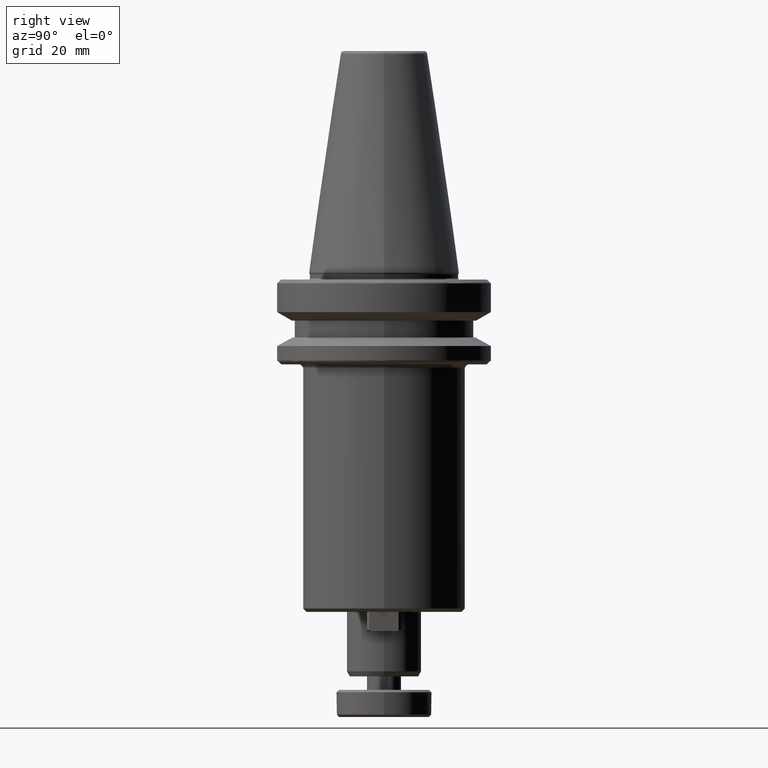
[diagram: clean part render]
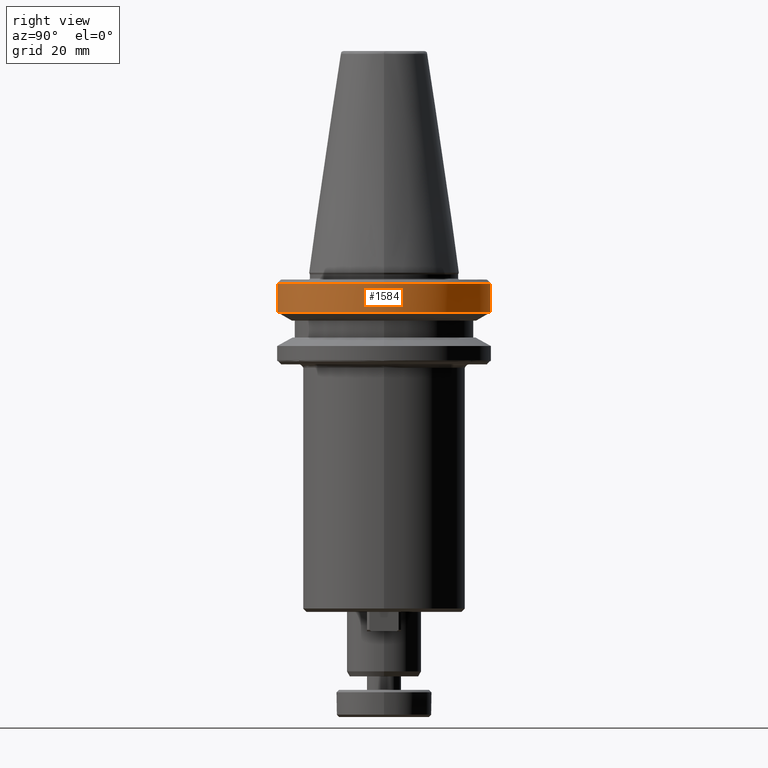
[diagram: same view with one face highlighted and labeled with its STEP entity id]
A machine part, right view. The second image highlights one B-rep face of the part: STEP entity #1584.
In plain terms, the highlighted cylindrical surface (partial cylindrical patch) has radius 31.5 mm, axis along (0, -0, 1).
Its self-contained STEP definition (entity closure, byte-faithful):
#9 = ORIENTED_EDGE ( 'NONE', *, *, #3701, .T. ) ;
#223 = EDGE_LOOP ( 'NONE', ( #2383, #2720, #3405, #1739, #2759, #9, #3429 ) ) ;
#412 = CYLINDRICAL_SURFACE ( 'NONE', #2476, 31.50000000000000000 ) ;
#415 = CIRCLE ( 'NONE', #2482, 31.50000000000000000 ) ;
#418 = FACE_OUTER_BOUND ( 'NONE', #223, .T. ) ;
#667 = AXIS2_PLACEMENT_3D ( 'NONE', #3432, #3436, #3394 ) ;
#848 = EDGE_CURVE ( 'NONE', #3489, #1863, #1310, .T. ) ;
#958 = CIRCLE ( 'NONE', #3122, 31.50000000000000000 ) ;
#1029 = VERTEX_POINT ( 'NONE', #3682 ) ;
#1035 = AXIS2_PLACEMENT_3D ( 'NONE', #1930, #2001, #2395 ) ;
#1209 = EDGE_CURVE ( 'NONE', #2870, #3741, #958, .T. ) ;
#1282 = VECTOR ( 'NONE', #3242, 1000.000000000000000 ) ;
#1310 = LINE ( 'NONE', #3238, #1282 ) ;
#1350 = DIRECTION ( 'NONE',  ( 1.000000000000000000, 0.0000000000000000000, -4.956352788505163300E-016 ) ) ;
#1358 = DIRECTION ( 'NONE',  ( 0.0000000000000000000, 0.0000000000000000000, 1.000000000000000000 ) ) ;
#1360 = CARTESIAN_POINT ( 'NONE',  ( 0.0000000000000000000, 0.0000000000000000000, -11.59985799399998500 ) ) ;
#1552 = DIRECTION ( 'NONE',  ( 0.0000000000000000000, 0.0000000000000000000, 1.000000000000000000 ) ) ;
#1584 = ADVANCED_FACE ( 'NONE', ( #418 ), #412, .T. ) ;
#1587 = EDGE_CURVE ( 'NONE', #1954, #1029, #415, .T. ) ;
#1660 = AXIS2_PLACEMENT_3D ( 'NONE', #1360, #1358, #1350 ) ;
#1739 = ORIENTED_EDGE ( 'NONE', *, *, #3427, .F. ) ;
#1862 = VECTOR ( 'NONE', #2321, 1000.000000000000000 ) ;
#1863 = VERTEX_POINT ( 'NONE', #3138 ) ;
#1866 = LINE ( 'NONE', #2382, #1862 ) ;
#1930 = CARTESIAN_POINT ( 'NONE',  ( 0.0000000000000000000, 0.0000000000000000000, -3.165685424999995100 ) ) ;
#1954 = VERTEX_POINT ( 'NONE', #2973 ) ;
#2001 = DIRECTION ( 'NONE',  ( 0.0000000000000000000, 0.0000000000000000000, 1.000000000000000000 ) ) ;
#2300 = EDGE_CURVE ( 'NONE', #3489, #3730, #3445, .T. ) ;
#2321 = DIRECTION ( 'NONE',  ( 0.0000000000000000000, -2.753529326947312600E-017, 1.000000000000000000 ) ) ;
#2363 = CARTESIAN_POINT ( 'NONE',  ( 0.0000000000000000000, -31.50000000000002800, -11.59985799399998500 ) ) ;
#2382 = CARTESIAN_POINT ( 'NONE',  ( 3.857637417314162700E-015, 31.50000000000000000, -11.59985799400000100 ) ) ;
#2383 = ORIENTED_EDGE ( 'NONE', *, *, #2300, .T. ) ;
#2395 = DIRECTION ( 'NONE',  ( 1.000000000000000000, 0.0000000000000000000, -1.514441129821022100E-016 ) ) ;
#2476 = AXIS2_PLACEMENT_3D ( 'NONE', #3715, #3695, #3684 ) ;
#2482 = AXIS2_PLACEMENT_3D ( 'NONE', #3665, #3663, #3657 ) ;
#2675 = CIRCLE ( 'NONE', #1035, 31.50000000000000000 ) ;
#2720 = ORIENTED_EDGE ( 'NONE', *, *, #2769, .T. ) ;
#2759 = ORIENTED_EDGE ( 'NONE', *, *, #1209, .F. ) ;
#2769 = EDGE_CURVE ( 'NONE', #3730, #1954, #1866, .T. ) ;
#2809 = CARTESIAN_POINT ( 'NONE',  ( 8.599437156288562500, -30.30345987828854200, -3.165685424999995100 ) ) ;
#2870 = VERTEX_POINT ( 'NONE', #2809 ) ;
#2933 = CIRCLE ( 'NONE', #667, 31.50000000000000000 ) ;
#2973 = CARTESIAN_POINT ( 'NONE',  ( 3.857637417314162700E-015, 31.50000000000000000, -3.165685424999995100 ) ) ;
#3122 = AXIS2_PLACEMENT_3D ( 'NONE', #3907, #1552, #3488 ) ;
#3138 = CARTESIAN_POINT ( 'NONE',  ( 0.0000000000000000000, -31.50000000000000000, -3.165685424999995100 ) ) ;
#3238 = CARTESIAN_POINT ( 'NONE',  ( 0.0000000000000000000, -31.50000000000000000, -11.59985799400000100 ) ) ;
#3242 = DIRECTION ( 'NONE',  ( 0.0000000000000000000, -2.753529326947312600E-017, 1.000000000000000000 ) ) ;
#3370 = CARTESIAN_POINT ( 'NONE',  ( 31.50000000000453000, -2.828499295505090300E-009, -3.165685425006475700 ) ) ;
#3394 = DIRECTION ( 'NONE',  ( -1.000000000000000000, 0.0000000000000000000, 0.0000000000000000000 ) ) ;
#3405 = ORIENTED_EDGE ( 'NONE', *, *, #1587, .T. ) ;
#3427 = EDGE_CURVE ( 'NONE', #3741, #1029, #2675, .T. ) ;
#3429 = ORIENTED_EDGE ( 'NONE', *, *, #848, .F. ) ;
#3432 = CARTESIAN_POINT ( 'NONE',  ( 0.0000000000000000000, 0.0000000000000000000, -3.165685424999995100 ) ) ;
#3436 = DIRECTION ( 'NONE',  ( -0.0000000000000000000, -0.0000000000000000000, -1.000000000000000000 ) ) ;
#3445 = CIRCLE ( 'NONE', #1660, 31.50000000000000000 ) ;
#3488 = DIRECTION ( 'NONE',  ( 1.000000000000000000, 0.0000000000000000000, -1.514441129821022100E-016 ) ) ;
#3489 = VERTEX_POINT ( 'NONE', #2363 ) ;
#3639 = CARTESIAN_POINT ( 'NONE',  ( 3.857637417314165800E-015, 31.50000000000002800, -11.59985799399998500 ) ) ;
#3657 = DIRECTION ( 'NONE',  ( -1.000000000000000000, 0.0000000000000000000, 0.0000000000000000000 ) ) ;
#3663 = DIRECTION ( 'NONE',  ( -0.0000000000000000000, -0.0000000000000000000, -1.000000000000000000 ) ) ;
#3665 = CARTESIAN_POINT ( 'NONE',  ( 0.0000000000000000000, 0.0000000000000000000, -3.165685424999995100 ) ) ;
#3682 = CARTESIAN_POINT ( 'NONE',  ( 8.599437156288559000, 30.30345987828854600, -3.165685424999995100 ) ) ;
#3684 = DIRECTION ( 'NONE',  ( 0.0000000000000000000, -1.000000000000000000, 0.0000000000000000000 ) ) ;
#3695 = DIRECTION ( 'NONE',  ( 0.0000000000000000000, -2.753529326947312600E-017, 1.000000000000000000 ) ) ;
#3701 = EDGE_CURVE ( 'NONE', #2870, #1863, #2933, .T. ) ;
#3715 = CARTESIAN_POINT ( 'NONE',  ( 0.0000000000000000000, 0.0000000000000000000, -11.59985799400000100 ) ) ;
#3730 = VERTEX_POINT ( 'NONE', #3639 ) ;
#3741 = VERTEX_POINT ( 'NONE', #3370 ) ;
#3907 = CARTESIAN_POINT ( 'NONE',  ( 0.0000000000000000000, 0.0000000000000000000, -3.165685424999995100 ) ) ;